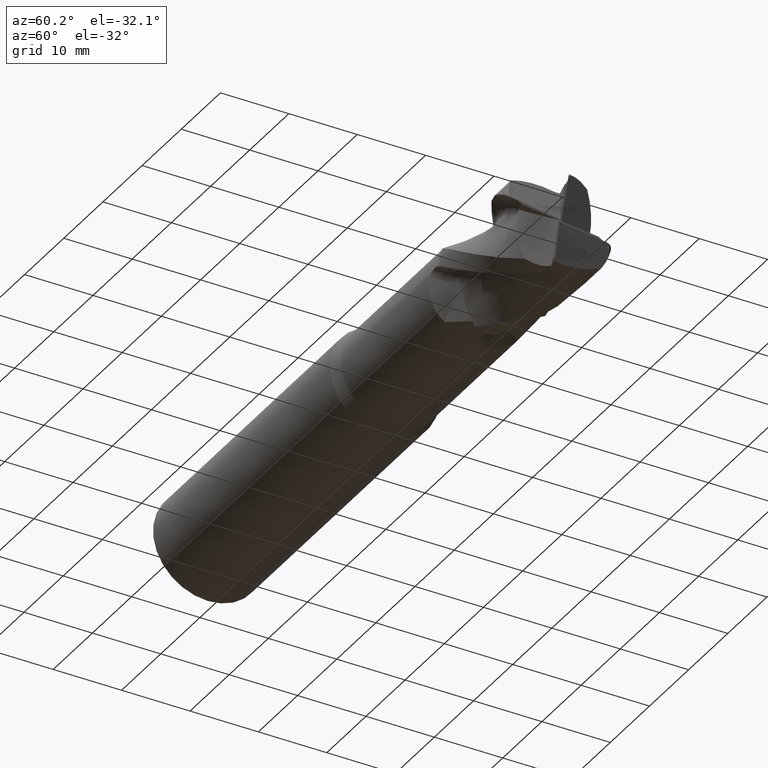
[diagram: clean part render]
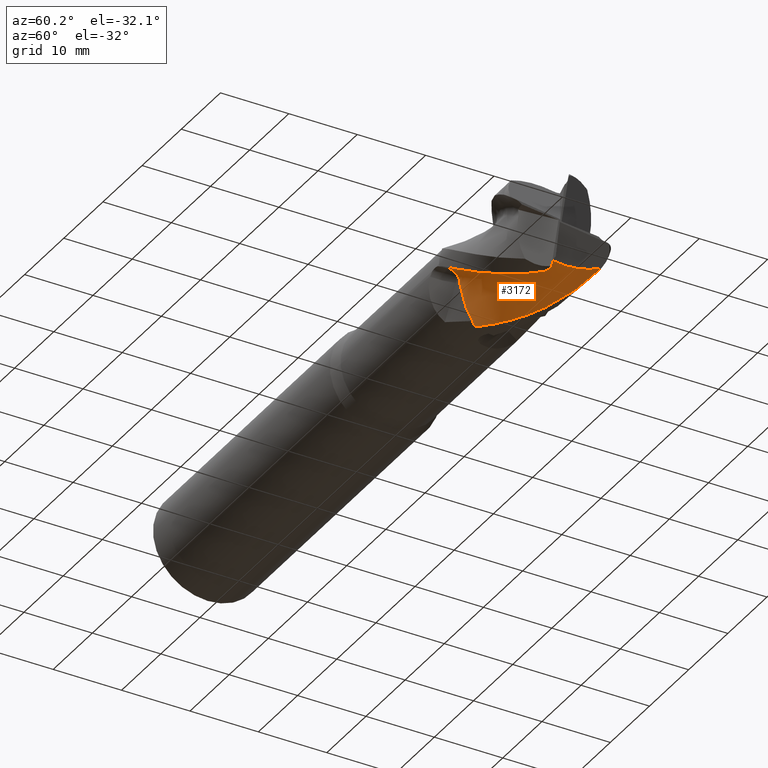
[diagram: same view with one face highlighted and labeled with its STEP entity id]
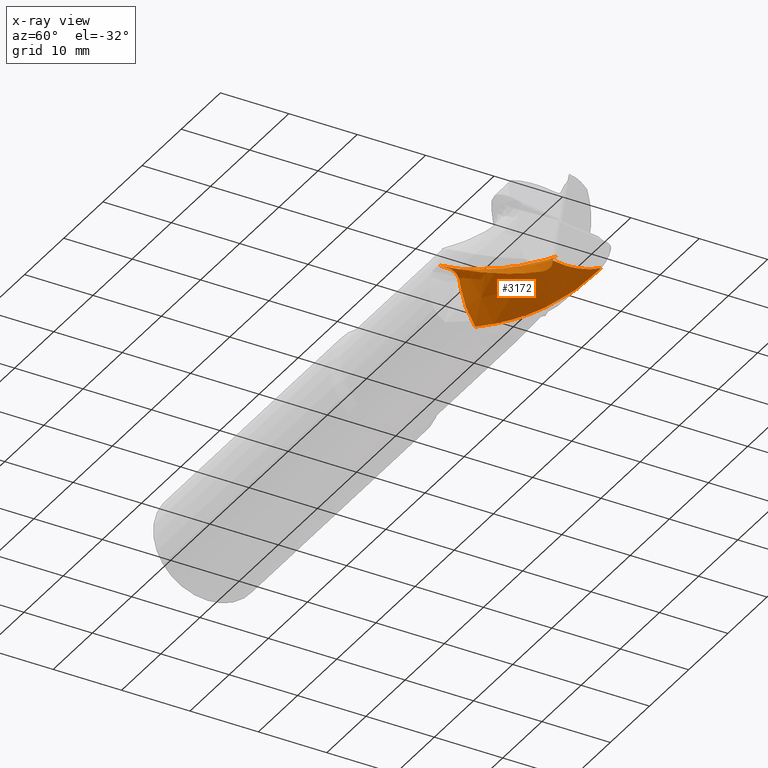
[diagram: x-ray of the same camera — body ghosted, the highlighted face saturated]
A machine part, auxiliary view. The second image highlights one B-rep face of the part: STEP entity #3172.
The next image is the same camera in x-ray: the body ghosted, the highlighted face saturated — about 0% of this face is hidden behind the body in this view.
In plain terms, the highlighted face is a freeform B-spline surface patch.
Its self-contained STEP definition (entity closure, byte-faithful):
#17 = B_SPLINE_CURVE_WITH_KNOTS ( 'NONE', 3,
 ( #210, #206, #205, #204, #203, #202, #201, #200, #199, #198, #197, #196, #195, #194, #193, #192, #191, #190, #189, #187, #185, #184, #183, #182, #181, #180 ),
 .UNSPECIFIED., .F., .F.,
 ( 4, 2, 2, 2, 2, 2, 2, 2, 2, 2, 2, 2, 4 ),
 ( 5.357508020654277700E-005, 0.001243000614496340100, 0.002432426148786137600, 0.004811277217365733100, 0.006000702751655531300, 0.007190128285945329500, 0.009568979354524926800, 0.01194783042310452000, 0.01313725595739431400, 0.01432668149168410600, 0.01670553256026369500, 0.01789495809455348600, 0.01908438362884327900 ),
 .UNSPECIFIED. ) ;
#43 = B_SPLINE_CURVE_WITH_KNOTS ( 'NONE', 3,
 ( #446, #463, #456, #455, #458, #457, #460, #459, #461, #462 ),
 .UNSPECIFIED., .F., .F.,
 ( 4, 2, 2, 2, 4 ),
 ( 0.0000000000000000000, 0.0004267208506475113700, 0.0008534417012950227400, 0.001280162551942534000, 0.001706883402590045500 ),
 .UNSPECIFIED. ) ;
#49 = B_SPLINE_CURVE_WITH_KNOTS ( 'NONE', 3,
 ( #525, #2167, #2168, #2169, #2166, #2266, #662, #670, #579, #578, #996, #1004, #1003, #997 ),
 .UNSPECIFIED., .F., .F.,
 ( 4, 2, 2, 2, 2, 2, 4 ),
 ( 0.0000000000000000000, 0.004771799707058960200, 0.007157699560588444600, 0.009543599414117920300, 0.01431539912117688700, 0.01670129897470637100, 0.01908719882823585500 ),
 .UNSPECIFIED. ) ;
#53 = B_SPLINE_CURVE_WITH_KNOTS ( 'NONE', 3,
 ( #2313, #2273, #2272, #2270, #2269, #2268 ),
 .UNSPECIFIED., .F., .F.,
 ( 4, 2, 4 ),
 ( 0.002925791194177641000, 0.003807155817148820400, 0.004688520440119999300 ),
 .UNSPECIFIED. ) ;
#60 = B_SPLINE_CURVE_WITH_KNOTS ( 'NONE', 3,
 ( #430, #324, #325, #332, #333, #329, #330, #331, #328, #326, #327, #453, #454, #452 ),
 .UNSPECIFIED., .F., .F.,
 ( 4, 2, 2, 2, 2, 2, 4 ),
 ( 0.003240335425444872500, 0.003710400609906080500, 0.004180465794367289400, 0.005120596163289706200, 0.007000856901134538300, 0.008881117638979370300, 0.01076137837682420200 ),
 .UNSPECIFIED. ) ;
#154 = FACE_OUTER_BOUND ( 'NONE', #1989, .T. ) ;
#180 = CARTESIAN_POINT ( 'NONE',  ( 24.99999999999998900, -2.707067271003771800, -7.528066603734353100 ) ) ;
#181 = CARTESIAN_POINT ( 'NONE',  ( 25.33639450635487500, -2.501514964047163700, -7.601982517598019100 ) ) ;
#182 = CARTESIAN_POINT ( 'NONE',  ( 25.67506491012196800, -2.296885944676800400, -7.666234315150453500 ) ) ;
#183 = CARTESIAN_POINT ( 'NONE',  ( 26.34983989586399700, -1.879066184878860600, -7.779199437634252600 ) ) ;
#184 = CARTESIAN_POINT ( 'NONE',  ( 26.68559653089028300, -1.664183001736114800, -7.828121930101498400 ) ) ;
#185 = CARTESIAN_POINT ( 'NONE',  ( 27.68573733589415300, -1.011063171209364300, -7.948191198444885900 ) ) ;
#187 = CARTESIAN_POINT ( 'NONE',  ( 28.34295415546614200, -0.5646330718656978900, -7.992241120303091000 ) ) ;
#189 = CARTESIAN_POINT ( 'NONE',  ( 29.33011876363249800, 0.09720917857566596700, -8.002451657668912000 ) ) ;
#190 = CARTESIAN_POINT ( 'NONE',  ( 29.65939457550393500, 0.3165395394811110200, -7.996673292725657400 ) ) ;
#191 = CARTESIAN_POINT ( 'NONE',  ( 30.32076287222508900, 0.7490791845668362000, -7.967801541573140700 ) ) ;
#192 = CARTESIAN_POINT ( 'NONE',  ( 30.65407510669100700, 0.9604428447403063900, -7.945048280509833900 ) ) ;
#193 = CARTESIAN_POINT ( 'NONE',  ( 31.64962486026150000, 1.598591591403928400, -7.850444285164525300 ) ) ;
#194 = CARTESIAN_POINT ( 'NONE',  ( 32.30827213094310900, 2.028102600723675800, -7.751241440436238000 ) ) ;
#195 = CARTESIAN_POINT ( 'NONE',  ( 33.63267961145157200, 2.868777764984548700, -7.480979759505331100 ) ) ;
#196 = CARTESIAN_POINT ( 'NONE',  ( 34.30174501487060500, 3.281438009620042200, -7.308937799132398700 ) ) ;
#197 = CARTESIAN_POINT ( 'NONE',  ( 35.30700307745792100, 3.860089972561567200, -7.010478385557771500 ) ) ;
#198 = CARTESIAN_POINT ( 'NONE',  ( 35.64348294907230800, 4.045379322804227400, -6.905206145999764900 ) ) ;
#199 = CARTESIAN_POINT ( 'NONE',  ( 36.31007556969581200, 4.413289012797315000, -6.676065148996632300 ) ) ;
#200 = CARTESIAN_POINT ( 'NONE',  ( 36.64111705442428500, 4.594524380359179500, -6.552770684226494800 ) ) ;
#201 = CARTESIAN_POINT ( 'NONE',  ( 37.63110863891640900, 5.124613682093255700, -6.158909505455830500 ) ) ;
#202 = CARTESIAN_POINT ( 'NONE',  ( 38.28698816085142200, 5.459493390990113300, -5.864084725912507100 ) ) ;
#203 = CARTESIAN_POINT ( 'NONE',  ( 39.27934701316953400, 5.917076666294310200, -5.388561326080637300 ) ) ;
#204 = CARTESIAN_POINT ( 'NONE',  ( 39.61154810166404200, 6.062230754448275000, -5.224584669761511300 ) ) ;
#205 = CARTESIAN_POINT ( 'NONE',  ( 40.28094247290337600, 6.336084764191433300, -4.888860455429943700 ) ) ;
#206 = CARTESIAN_POINT ( 'NONE',  ( 40.61848861709414400, 6.464585507317065300, -4.717725205046931200 ) ) ;
#210 = CARTESIAN_POINT ( 'NONE',  ( 40.95458504110494100, 6.588591558615744000, -4.537671349242727600 ) ) ;
#324 = CARTESIAN_POINT ( 'NONE',  ( 40.35894581821276700, -0.7476687134579049800, -5.196836640887537100 ) ) ;
#325 = CARTESIAN_POINT ( 'NONE',  ( 40.37495507815604900, -0.5912605937238795100, -5.172105954347266300 ) ) ;
#326 = CARTESIAN_POINT ( 'NONE',  ( 40.54208569225797000, 3.539756952357235000, -5.343690272399898700 ) ) ;
#327 = CARTESIAN_POINT ( 'NONE',  ( 40.60310010451259200, 4.167535932430355100, -5.254886245420407500 ) ) ;
#328 = CARTESIAN_POINT ( 'NONE',  ( 40.45199421038889700, 2.274934778652232500, -5.416691017165958600 ) ) ;
#329 = CARTESIAN_POINT ( 'NONE',  ( 40.40044421340199700, 0.3624285527808008800, -5.253954953772879600 ) ) ;
#330 = CARTESIAN_POINT ( 'NONE',  ( 40.40305150496126900, 0.6790593170338667900, -5.300015418913524500 ) ) ;
#331 = CARTESIAN_POINT ( 'NONE',  ( 40.42278150962500400, 1.633582339184567600, -5.400583888663565100 ) ) ;
#332 = CARTESIAN_POINT ( 'NONE',  ( 40.39693739316281600, -0.2717654314411579500, -5.156165240289538200 ) ) ;
#333 = CARTESIAN_POINT ( 'NONE',  ( 40.40225275938881600, -0.1102934509691860100, -5.166798741034228600 ) ) ;
#421 = CARTESIAN_POINT ( 'NONE',  ( 41.99999999999999300, -1.185602332051823900, -6.898865639381120300 ) ) ;
#430 = CARTESIAN_POINT ( 'NONE',  ( 40.33825437603732000, -0.9009609209414395400, -5.237205692324732100 ) ) ;
#446 = CARTESIAN_POINT ( 'NONE',  ( 41.00000000000000000, -2.000542796254437300, -7.745826522738214600 ) ) ;
#452 = CARTESIAN_POINT ( 'NONE',  ( 40.95458504110494100, 6.588591558615744000, -4.537671349242727600 ) ) ;
#453 = CARTESIAN_POINT ( 'NONE',  ( 40.75667423696089000, 5.405790857320592800, -4.972552460978059600 ) ) ;
#454 = CARTESIAN_POINT ( 'NONE',  ( 40.84738126116343400, 6.007507891047414000, -4.783491752996455100 ) ) ;
#455 = CARTESIAN_POINT ( 'NONE',  ( 41.46726118704494700, -1.677583553628656700, -7.712559565639463900 ) ) ;
#456 = CARTESIAN_POINT ( 'NONE',  ( 41.23830987178391900, -1.842845729742141900, -7.763492351769324200 ) ) ;
#457 = CARTESIAN_POINT ( 'NONE',  ( 41.76803947306793000, -1.440296374233970700, -7.516861439337446900 ) ) ;
#458 = CARTESIAN_POINT ( 'NONE',  ( 41.57632062606871400, -1.594537028017772900, -7.663527048934818200 ) ) ;
#459 = CARTESIAN_POINT ( 'NONE',  ( 41.96815457701081400, -1.252842361719118400, -7.178849728795053200 ) ) ;
#460 = CARTESIAN_POINT ( 'NONE',  ( 41.85112147092002700, -1.368788798780304500, -7.418402964363100900 ) ) ;
#461 = CARTESIAN_POINT ( 'NONE',  ( 42.00000000000093100, -1.210463024485221500, -7.042390158141287800 ) ) ;
#462 = CARTESIAN_POINT ( 'NONE',  ( 41.99999999999999300, -1.185602332051823900, -6.898865639381120300 ) ) ;
#463 = CARTESIAN_POINT ( 'NONE',  ( 41.12096760625793500, -1.923351206700340700, -7.765763075404421100 ) ) ;
#500 = B_SPLINE_CURVE_WITH_KNOTS ( 'NONE', 3,
 ( #1319, #1326, #1327, #1328, #1329, #1330, #1331, #1332, #1333, #1334, #1335, #1336 ),
 .UNSPECIFIED., .F., .F.,
 ( 4, 2, 2, 2, 2, 4 ),
 ( 0.0000000000000000000, 0.0003511358010097651700, 0.0005267037015146477000, 0.0007022716020195303400, 0.001053407403029295400, 0.001404543204039060700 ),
 .UNSPECIFIED. ) ;
#508 = B_SPLINE_CURVE_WITH_KNOTS ( 'NONE', 3,
 ( #1085, #1108, #1109, #1110 ),
 .UNSPECIFIED., .F., .F.,
 ( 4, 4 ),
 ( 0.0000000000000000000, 1.000000000000000000 ),
 .UNSPECIFIED. ) ;
#516 = B_SPLINE_CURVE_WITH_KNOTS ( 'NONE', 3,
 ( #1081, #1086, #1087, #1088, #1089, #1090, #1091, #1092, #1093, #1094, #1095, #1096, #1097, #1098, #1099, #1100, #1101, #1102, #1103, #1104, #1105, #1106 ),
 .UNSPECIFIED., .F., .F.,
 ( 4, 2, 2, 2, 2, 2, 2, 2, 2, 2, 4 ),
 ( 0.0006889557811843208900, 0.002875303047863141900, 0.003968476681202553000, 0.005061650314541964500, 0.006154823947881376100, 0.006701410764551081800, 0.006974704172885933800, 0.007247997581220785900, 0.008341171214560195700, 0.008887758031229899700, 0.009434344847899605500 ),
 .UNSPECIFIED. ) ;
#525 = CARTESIAN_POINT ( 'NONE',  ( 24.99999999999999600, -8.000000000000016000, -8.177756062443091800E-014 ) ) ;
#578 = CARTESIAN_POINT ( 'NONE',  ( 37.64917986814123900, -4.042167640110274200, -6.917536023775444900 ) ) ;
#579 = CARTESIAN_POINT ( 'NONE',  ( 35.65775827175626500, -5.137581406851767300, -6.194429172402655200 ) ) ;
#662 = CARTESIAN_POINT ( 'NONE',  ( 32.33780543952782700, -6.592095557605363300, -4.553828963208332900 ) ) ;
#670 = CARTESIAN_POINT ( 'NONE',  ( 34.33784855928696100, -5.784492767498900200, -5.595710114880337600 ) ) ;
#748 = VECTOR ( 'NONE', #1112, 1000.000000000000000 ) ;
#757 = LINE ( 'NONE', #1111, #748 ) ;
#787 = VERTEX_POINT ( 'NONE', #898 ) ;
#790 = VERTEX_POINT ( 'NONE', #881 ) ;
#792 = VERTEX_POINT ( 'NONE', #879 ) ;
#809 = CARTESIAN_POINT ( 'NONE',  ( 24.99999999999999600, -6.520000000000009300, -6.561739928471614200E-014 ) ) ;
#849 = CARTESIAN_POINT ( 'NONE',  ( 41.98837996745696400, -0.6681168625492267500, -5.628964541514208400 ) ) ;
#852 = CARTESIAN_POINT ( 'NONE',  ( 41.00000000000000000, -2.000542796254437300, -7.745826522738214600 ) ) ;
#853 = CARTESIAN_POINT ( 'NONE',  ( 24.99999999999999600, -8.000000000000016000, -8.177756062443091800E-014 ) ) ;
#856 = CARTESIAN_POINT ( 'NONE',  ( 40.95458504110494100, 6.588591558615744000, -4.537671349242727600 ) ) ;
#879 = CARTESIAN_POINT ( 'NONE',  ( 40.33825437603732000, -0.9009609209414395400, -5.237205692324732100 ) ) ;
#881 = CARTESIAN_POINT ( 'NONE',  ( 24.99999999999998900, -2.707067271003771800, -7.528066603734353100 ) ) ;
#882 = VERTEX_POINT ( 'NONE', #856 ) ;
#898 = CARTESIAN_POINT ( 'NONE',  ( 25.00000000000000000, -7.506457499987581300, -7.568548554874214900E-014 ) ) ;
#904 = VERTEX_POINT ( 'NONE', #853 ) ;
#906 = VERTEX_POINT ( 'NONE', #852 ) ;
#909 = VERTEX_POINT ( 'NONE', #849 ) ;
#940 = VERTEX_POINT ( 'NONE', #809 ) ;
#970 = VERTEX_POINT ( 'NONE', #421 ) ;
#996 = CARTESIAN_POINT ( 'NONE',  ( 38.31493670163931100, -3.656180945675958400, -7.129344742717134600 ) ) ;
#997 = CARTESIAN_POINT ( 'NONE',  ( 41.00000000000000000, -2.000542796254437300, -7.745826522738214600 ) ) ;
#1003 = CARTESIAN_POINT ( 'NONE',  ( 40.32811515339462000, -2.429284514067691500, -7.635093839465843900 ) ) ;
#1004 = CARTESIAN_POINT ( 'NONE',  ( 39.65595818607005200, -2.848845765767835200, -7.488610910636167800 ) ) ;
#1081 = CARTESIAN_POINT ( 'NONE',  ( 24.99999999999998900, -2.707067271003771800, -7.528066603734353100 ) ) ;
#1085 = CARTESIAN_POINT ( 'NONE',  ( 24.99999999999999600, -6.520000000000009300, -6.561739928471614200E-014 ) ) ;
#1086 = CARTESIAN_POINT ( 'NONE',  ( 25.00000000000000000, -3.116744820006482900, -6.919312838221173000 ) ) ;
#1087 = CARTESIAN_POINT ( 'NONE',  ( 24.99999999999998600, -3.477303475442347300, -6.285254468470347100 ) ) ;
#1088 = CARTESIAN_POINT ( 'NONE',  ( 24.99999999999998600, -3.940723967670151800, -5.294283707470572900 ) ) ;
#1089 = CARTESIAN_POINT ( 'NONE',  ( 24.99999999999998600, -4.082256499829820300, -4.957293317122313200 ) ) ;
#1090 = CARTESIAN_POINT ( 'NONE',  ( 24.99999999999998600, -4.338311078410094400, -4.269397531378698900 ) ) ;
#1091 = CARTESIAN_POINT ( 'NONE',  ( 24.99999999999998600, -4.453082337091902200, -3.917472363214875600 ) ) ;
#1092 = CARTESIAN_POINT ( 'NONE',  ( 24.99999999999999300, -4.652341353751850800, -3.205687404642113800 ) ) ;
#1093 = CARTESIAN_POINT ( 'NONE',  ( 25.00000000000000000, -4.736999099855669500, -2.845485477025390800 ) ) ;
#1094 = CARTESIAN_POINT ( 'NONE',  ( 25.00000000000000400, -4.840859812708182600, -2.301301704143486200 ) ) ;
#1095 = CARTESIAN_POINT ( 'NONE',  ( 24.99999999999998600, -4.871654531451984100, -2.119162010301131700 ) ) ;
#1096 = CARTESIAN_POINT ( 'NONE',  ( 24.99999999999999600, -4.912099692412971000, -1.844833132612512200 ) ) ;
#1097 = CARTESIAN_POINT ( 'NONE',  ( 24.99999999999999600, -4.924626109544375300, -1.753186234990334700 ) ) ;
#1098 = CARTESIAN_POINT ( 'NONE',  ( 25.00000000000000000, -4.947766321651890600, -1.569448555836005600 ) ) ;
#1099 = CARTESIAN_POINT ( 'NONE',  ( 24.99999999999997200, -4.958724675852145900, -1.477441295335687700 ) ) ;
#1100 = CARTESIAN_POINT ( 'NONE',  ( 24.99999999999996400, -5.058867622108317100, -1.027666590746653300 ) ) ;
#1101 = CARTESIAN_POINT ( 'NONE',  ( 25.00000000000000400, -5.242255945634328300, -0.6800678077114085100 ) ) ;
#1102 = CARTESIAN_POINT ( 'NONE',  ( 25.00000000000000000, -5.648432458261455100, -0.2952373027313381400 ) ) ;
#1103 = CARTESIAN_POINT ( 'NONE',  ( 24.99999999999998600, -5.804514968501376200, -0.1904006683925212900 ) ) ;
#1104 = CARTESIAN_POINT ( 'NONE',  ( 24.99999999999998600, -6.148214747242179500, -0.04192257787149077100 ) ) ;
#1105 = CARTESIAN_POINT ( 'NONE',  ( 25.00000000000001800, -6.331293885177695200, -6.333604159799306600E-014 ) ) ;
#1106 = CARTESIAN_POINT ( 'NONE',  ( 24.99999999999999600, -6.520000000000009300, -6.561739928471614200E-014 ) ) ;
#1108 = CARTESIAN_POINT ( 'NONE',  ( 24.99999999999999300, -6.846666666666678200, -6.544689454890525100E-014 ) ) ;
#1109 = CARTESIAN_POINT ( 'NONE',  ( 24.99999999999999300, -7.173333333333346200, -6.544689454890525100E-014 ) ) ;
#1110 = CARTESIAN_POINT ( 'NONE',  ( 25.00000000000000000, -7.506457499987581300, -7.568548554874214900E-014 ) ) ;
#1111 = CARTESIAN_POINT ( 'NONE',  ( 24.99999999999999600, -8.000000000000016000, -8.340733361193967700E-014 ) ) ;
#1112 = DIRECTION ( 'NONE',  ( -2.344220913482160100E-015, -1.000000000000000000, -1.213543179934752800E-014 ) ) ;
#1319 = CARTESIAN_POINT ( 'NONE',  ( 41.99999999999999300, -1.185602332051823900, -6.898865639381120300 ) ) ;
#1326 = CARTESIAN_POINT ( 'NONE',  ( 41.99897828195931700, -1.166199728602023600, -6.783406474440973000 ) ) ;
#1327 = CARTESIAN_POINT ( 'NONE',  ( 41.99795656953735100, -1.146769607537848000, -6.667952651011920500 ) ) ;
#1328 = CARTESIAN_POINT ( 'NONE',  ( 41.99642400920095000, -1.117583187884227700, -6.494779920689127000 ) ) ;
#1329 = CARTESIAN_POINT ( 'NONE',  ( 41.99591291330490600, -1.109127797065981200, -6.436808491264937300 ) ) ;
#1330 = CARTESIAN_POINT ( 'NONE',  ( 41.99489202562981700, -1.085362674358582000, -6.322196146092124100 ) ) ;
#1331 = CARTESIAN_POINT ( 'NONE',  ( 41.99438082221659100, -1.069456292977574600, -6.265496671537281500 ) ) ;
#1332 = CARTESIAN_POINT ( 'NONE',  ( 41.99285977172617400, -1.010560004084114900, -6.098685216601978700 ) ) ;
#1333 = CARTESIAN_POINT ( 'NONE',  ( 41.99189083585183400, -0.9578320805378166500, -5.994944282700656000 ) ) ;
#1334 = CARTESIAN_POINT ( 'NONE',  ( 41.99004367626385200, -0.8291070675620014800, -5.800366886518427000 ) ) ;
#1335 = CARTESIAN_POINT ( 'NONE',  ( 41.98916401592800400, -0.7524430516151324700, -5.709429334032791700 ) ) ;
#1336 = CARTESIAN_POINT ( 'NONE',  ( 41.98837996745696400, -0.6681168625492267500, -5.628964541514208400 ) ) ;
#1738 = EDGE_CURVE ( 'NONE', #792, #882, #60, .T. ) ;
#1740 = EDGE_CURVE ( 'NONE', #906, #970, #43, .T. ) ;
#1829 = EDGE_CURVE ( 'NONE', #909, #792, #53, .T. ) ;
#1835 = EDGE_CURVE ( 'NONE', #904, #906, #49, .T. ) ;
#1868 = EDGE_CURVE ( 'NONE', #882, #790, #17, .T. ) ;
#1881 = EDGE_CURVE ( 'NONE', #790, #940, #516, .T. ) ;
#1882 = EDGE_CURVE ( 'NONE', #940, #787, #508, .T. ) ;
#1883 = EDGE_CURVE ( 'NONE', #787, #904, #757, .T. ) ;
#1938 = EDGE_CURVE ( 'NONE', #970, #909, #500, .T. ) ;
#1977 = ORIENTED_EDGE ( 'NONE', *, *, #1882, .F. ) ;
#1989 = EDGE_LOOP ( 'NONE', ( #1977, #2019, #2034, #2040, #2081, #2015, #2056, #2134, #2018 ) ) ;
#2015 = ORIENTED_EDGE ( 'NONE', *, *, #1938, .F. ) ;
#2018 = ORIENTED_EDGE ( 'NONE', *, *, #1883, .F. ) ;
#2019 = ORIENTED_EDGE ( 'NONE', *, *, #1881, .F. ) ;
#2034 = ORIENTED_EDGE ( 'NONE', *, *, #1868, .F. ) ;
#2040 = ORIENTED_EDGE ( 'NONE', *, *, #1738, .F. ) ;
#2056 = ORIENTED_EDGE ( 'NONE', *, *, #1740, .F. ) ;
#2081 = ORIENTED_EDGE ( 'NONE', *, *, #1829, .F. ) ;
#2134 = ORIENTED_EDGE ( 'NONE', *, *, #1835, .F. ) ;
#2152 = B_SPLINE_SURFACE_WITH_KNOTS ( 'NONE', 3, 3, ( 
 ( #2613, #2614, #2615, #2616, #2617, #2618, #2619, #2620, #2621, #2622, #2623, #2624, #2625, #2626, #2627, #2628 ),
 ( #2629, #2630, #2631, #2632, #2633, #2634, #2635, #2636, #2637, #2638, #2639, #2640, #2641, #2642, #2643, #2644 ),
 ( #2645, #2646, #2647, #2648, #2649, #2650, #2651, #2652, #2653, #2654, #2655, #2656, #2657, #2658, #2659, #2660 ),
 ( #2661, #2662, #2663, #2664, #2665, #2666, #2667, #2668, #2669, #2670, #2671, #2672, #2673, #2674, #2675, #2676 ),
 ( #2677, #2678, #2679, #2680, #2681, #2682, #2683, #2684, #2685, #2686, #2687, #2688, #2689, #2690, #2691, #2692 ),
 ( #2693, #2694, #2695, #2696, #2697, #2698, #2699, #2700, #2701, #2702, #2703, #2704, #2705, #2706, #2707, #2708 ),
 ( #2709, #2710, #2711, #2712, #2713, #2714, #2715, #2716, #2717, #2718, #2719, #2720, #2721, #2722, #2723, #2724 ),
 ( #2725, #2726, #2727, #2728, #2729, #2730, #2731, #2732, #2733, #2734, #2735, #2736, #2737, #2738, #2739, #2740 ),
 ( #2741, #2742, #2743, #2744, #2745, #2746, #2747, #2748, #2749, #2750, #2751, #2752, #2753, #2754, #2755, #2756 ),
 ( #2757, #2758, #2759, #2760, #2761, #2762, #2763, #2764, #2765, #2766, #2767, #2768, #2769, #2770, #2771, #2772 ),
 ( #2773, #2774, #2775, #2776, #2777, #2778, #2779, #2780, #2781, #2782, #2783, #2784, #2785, #2786, #2787, #2788 ),
 ( #2789, #2790, #2791, #2792, #2793, #2794, #2795, #2796, #2797, #2798, #2799, #2800, #2801, #2802, #2803, #2804 ),
 ( #2805, #2806, #2807, #2808, #2809, #2810, #2811, #2812, #2813, #2814, #2815, #2816, #2817, #2818, #2819, #2820 ),
 ( #2821, #2822, #2823, #2824, #2825, #2826, #2827, #2828, #2829, #2830, #2831, #2832, #2833, #2834, #2835, #2836 ) ),
 .UNSPECIFIED., .F., .F., .F.,
 ( 4, 2, 2, 2, 2, 2, 4 ),
 ( 4, 2, 2, 2, 2, 2, 2, 4 ),
 ( 0.0000000000000000000, 0.5000000000000003300, 0.6259407578674413000, 0.6902152126381615500, 0.7544896674088817900, 0.8363264449392544500, 1.000000000000000000 ),
 ( 0.0000000000000000000, 0.1428570737831660900, 0.2857161845894564100, 0.4285694415899814500, 0.5714305584100183300, 0.7142838154105434200, 0.8571429262168335200, 1.000000000000000000 ),
 .UNSPECIFIED. ) ;
#2166 = CARTESIAN_POINT ( 'NONE',  ( 30.32720734910232400, -7.252765827094753700, -3.404638826594765400 ) ) ;
#2167 = CARTESIAN_POINT ( 'NONE',  ( 26.34379014981697500, -8.000000000000012400, -0.8855962627934778100 ) ) ;
#2168 = CARTESIAN_POINT ( 'NONE',  ( 27.66898196080355300, -7.853224666013660200, -1.758816956992369700 ) ) ;
#2169 = CARTESIAN_POINT ( 'NONE',  ( 29.66201325733073100, -7.428481587251409800, -3.001550431633509800 ) ) ;
#2266 = CARTESIAN_POINT ( 'NONE',  ( 31.66456511648872800, -6.834954708149093800, -4.180618592957335600 ) ) ;
#2268 = CARTESIAN_POINT ( 'NONE',  ( 40.33825437603732000, -0.9009609209414395400, -5.237205692324732100 ) ) ;
#2269 = CARTESIAN_POINT ( 'NONE',  ( 40.61703040171945400, -0.8589215799163726400, -5.280499297355632400 ) ) ;
#2270 = CARTESIAN_POINT ( 'NONE',  ( 40.89464008021703000, -0.8178867774559831500, -5.330631697446119900 ) ) ;
#2272 = CARTESIAN_POINT ( 'NONE',  ( 41.44573643300013500, -0.7393681878659639200, -5.455071444169165700 ) ) ;
#2273 = CARTESIAN_POINT ( 'NONE',  ( 41.71978812321206900, -0.7017007250634228500, -5.528632337859817400 ) ) ;
#2313 = CARTESIAN_POINT ( 'NONE',  ( 41.98837996745696400, -0.6681168625492267500, -5.628964541514208400 ) ) ;
#2613 = CARTESIAN_POINT ( 'NONE',  ( 17.95646285666224900, -5.039999999999857900, -10.68777734191830800 ) ) ;
#2614 = CARTESIAN_POINT ( 'NONE',  ( 19.57215307841078900, -3.651257182109040900, -11.36794639507226100 ) ) ;
#2615 = CARTESIAN_POINT ( 'NONE',  ( 21.20118534387726300, -2.033816695161795100, -11.72967779491088800 ) ) ;
#2616 = CARTESIAN_POINT ( 'NONE',  ( 24.42354108332302700, 1.042367961987125600, -11.90894122982334300 ) ) ;
#2617 = CARTESIAN_POINT ( 'NONE',  ( 26.05771879731169000, 2.697850436688279200, -11.59406165774504800 ) ) ;
#2618 = CARTESIAN_POINT ( 'NONE',  ( 29.28229749857881700, 5.609706653628252900, -10.54180452474903800 ) ) ;
#2619 = CARTESIAN_POINT ( 'NONE',  ( 30.91501561199197900, 6.999725869600797300, -9.631080923323859000 ) ) ;
#2620 = CARTESIAN_POINT ( 'NONE',  ( 34.13832365002767200, 9.271946616366104600, -7.537119917730396200 ) ) ;
#2621 = CARTESIAN_POINT ( 'NONE',  ( 35.77245297799353100, 10.19750283528681800, -6.137109269888669300 ) ) ;
#2622 = CARTESIAN_POINT ( 'NONE',  ( 38.99644244330217200, 11.47331635805917700, -3.323647341958997400 ) ) ;
#2623 = CARTESIAN_POINT ( 'NONE',  ( 40.62868284885474400, 11.78955530514517700, -1.690983632304270400 ) ) ;
#2624 = CARTESIAN_POINT ( 'NONE',  ( 43.85231243068997000, 11.86454782108016900, 1.405247200229898800 ) ) ;
#2625 = CARTESIAN_POINT ( 'NONE',  ( 45.48757259105996600, 11.49843059394083500, 3.047586156122875400 ) ) ;
#2626 = CARTESIAN_POINT ( 'NONE',  ( 48.71115644824320900, 10.37751587151827500, 5.916503193962965300 ) ) ;
#2627 = CARTESIAN_POINT ( 'NONE',  ( 50.34246258558537300, 9.427749478702665400, 7.279794306619195700 ) ) ;
#2628 = CARTESIAN_POINT ( 'NONE',  ( 51.95308810071645700, 8.348642999610834900, 8.385054535906268900 ) ) ;
#2629 = CARTESIAN_POINT ( 'NONE',  ( 19.61506714757569700, -5.039999999999891700, -8.171031423086837700 ) ) ;
#2630 = CARTESIAN_POINT ( 'NONE',  ( 21.22941030924771200, -3.979033234408773500, -8.850586750229069800 ) ) ;
#2631 = CARTESIAN_POINT ( 'NONE',  ( 22.85946740496555300, -2.709958957678717500, -9.283513903314036100 ) ) ;
#2632 = CARTESIAN_POINT ( 'NONE',  ( 26.08195015577898000, -0.2334053113514638300, -9.715116056700381400 ) ) ;
#2633 = CARTESIAN_POINT ( 'NONE',  ( 27.71627235867493200, 1.121738060419385600, -9.604742902947837300 ) ) ;
#2634 = CARTESIAN_POINT ( 'NONE',  ( 30.94072520868310100, 3.576770996501570800, -9.022231660718722100 ) ) ;
#2635 = CARTESIAN_POINT ( 'NONE',  ( 32.57340110523280400, 4.773665104350516900, -8.412048951402152100 ) ) ;
#2636 = CARTESIAN_POINT ( 'NONE',  ( 35.79677361364922900, 6.808526215294563100, -6.926594074709051100 ) ) ;
#2637 = CARTESIAN_POINT ( 'NONE',  ( 37.43091945376612300, 7.672314938122017500, -5.883036067636675500 ) ) ;
#2638 = CARTESIAN_POINT ( 'NONE',  ( 40.65481296638498800, 8.966849090475673000, -3.722466810108694200 ) ) ;
#2639 = CARTESIAN_POINT ( 'NONE',  ( 42.28712361807942700, 9.363828956647671100, -2.437801844438907600 ) ) ;
#2640 = CARTESIAN_POINT ( 'NONE',  ( 45.51085079250501100, 9.710905193565521300, 0.06234244481949976400 ) ) ;
#2641 = CARTESIAN_POINT ( 'NONE',  ( 47.14600060979636000, 9.558807327323430400, 1.411045573932922600 ) ) ;
#2642 = CARTESIAN_POINT ( 'NONE',  ( 50.36942235217519900, 8.917618227764220900, 3.840536286807428600 ) ) ;
#2643 = CARTESIAN_POINT ( 'NONE',  ( 52.00172395734077900, 8.273087492616657100, 5.020052037952259700 ) ) ;
#2644 = CARTESIAN_POINT ( 'NONE',  ( 53.61168879934796600, 7.501706219226034200, 6.015092505340828000 ) ) ;
#2645 = CARTESIAN_POINT ( 'NONE',  ( 21.27367143848914600, -5.039999999999924500, -5.654285504255370600 ) ) ;
#2646 = CARTESIAN_POINT ( 'NONE',  ( 22.88649923684172900, -4.306419986152851800, -6.333156329783995500 ) ) ;
#2647 = CARTESIAN_POINT ( 'NONE',  ( 24.51774946605047500, -3.386101220194377400, -6.837350011714661100 ) ) ;
#2648 = CARTESIAN_POINT ( 'NONE',  ( 27.74035922823829400, -1.509178584691312600, -7.521290883579944800 ) ) ;
#2649 = CARTESIAN_POINT ( 'NONE',  ( 29.37482592003480200, -0.4543743158469842300, -7.615424148151468000 ) ) ;
#2650 = CARTESIAN_POINT ( 'NONE',  ( 32.59915291879074300, 1.543835339372370100, -7.502658796687563300 ) ) ;
#2651 = CARTESIAN_POINT ( 'NONE',  ( 34.23178659847362600, 2.547604339099398100, -7.193016979477924600 ) ) ;
#2652 = CARTESIAN_POINT ( 'NONE',  ( 37.45522357727078600, 4.345105814223861900, -6.316068231690229200 ) ) ;
#2653 = CARTESIAN_POINT ( 'NONE',  ( 39.08938592953870700, 5.147127040953853900, -5.628962865386363900 ) ) ;
#2654 = CARTESIAN_POINT ( 'NONE',  ( 42.31318348946778900, 6.460381822895533900, -4.121286278256708800 ) ) ;
#2655 = CARTESIAN_POINT ( 'NONE',  ( 43.94556438731082400, 6.938102608146804700, -3.184620056576484600 ) ) ;
#2656 = CARTESIAN_POINT ( 'NONE',  ( 47.16938915431331500, 7.557262566054238700, -1.280562310587956200 ) ) ;
#2657 = CARTESIAN_POINT ( 'NONE',  ( 48.80442862853948300, 7.619184060700138000, -0.2254950082578705600 ) ) ;
#2658 = CARTESIAN_POINT ( 'NONE',  ( 52.02768825610046800, 7.457720584016053400, 1.764569379652735100 ) ) ;
#2659 = CARTESIAN_POINT ( 'NONE',  ( 53.66084737358735200, 7.118785376616171900, 2.760119565701888400 ) ) ;
#2660 = CARTESIAN_POINT ( 'NONE',  ( 55.27028949797946200, 6.654769438841232600, 3.645130474775384800 ) ) ;
#2661 = CARTESIAN_POINT ( 'NONE',  ( 23.35004749220225400, -5.039999999999967200, -2.503617808669052800 ) ) ;
#2662 = CARTESIAN_POINT ( 'NONE',  ( 24.96101173953701400, -4.715509718604528700, -3.181645928207345700 ) ) ;
#2663 = CARTESIAN_POINT ( 'NONE',  ( 26.59372212620117200, -4.232551220645537300, -3.775042651365986000 ) ) ;
#2664 = CARTESIAN_POINT ( 'NONE',  ( 29.81649089157341900, -3.106295563853415800, -4.774881700593899000 ) ) ;
#2665 = CARTESIAN_POINT ( 'NONE',  ( 31.45113846635653900, -2.427480266416246500, -5.125032770114956700 ) ) ;
#2666 = CARTESIAN_POINT ( 'NONE',  ( 34.67530791425799900, -1.001159232465612700, -5.600333616396851800 ) ) ;
#2667 = CARTESIAN_POINT ( 'NONE',  ( 36.30788874341529700, -0.2391599858195044600, -5.666933386739101400 ) ) ;
#2668 = CARTESIAN_POINT ( 'NONE',  ( 39.53140643150919700, 1.261195348637619700, -5.551762213933551000 ) ) ;
#2669 = CARTESIAN_POINT ( 'NONE',  ( 41.16558945502615100, 1.985890988732778900, -5.310893319846363700 ) ) ;
#2670 = CARTESIAN_POINT ( 'NONE',  ( 44.38926689355298500, 3.322581780816250800, -4.620560998545689900 ) ) ;
#2671 = CARTESIAN_POINT ( 'NONE',  ( 46.02173573124432700, 3.901380630231626100, -4.119547971963127600 ) ) ;
#2672 = CARTESIAN_POINT ( 'NONE',  ( 49.24568267260679000, 4.861157169170031300, -2.961719951277590000 ) ) ;
#2673 = CARTESIAN_POINT ( 'NONE',  ( 50.88058401037416400, 5.191005545727235500, -2.274249912853183900 ) ) ;
#2674 = CARTESIAN_POINT ( 'NONE',  ( 54.10364068940456400, 5.630101708940705900, -0.8342952186908837400 ) ) ;
#2675 = CARTESIAN_POINT ( 'NONE',  ( 55.73735056756657300, 5.674138595418223300, -0.06942558764187355100 ) ) ;
#2676 = CARTESIAN_POINT ( 'NONE',  ( 57.34666105458120500, 5.594504938481486000, 0.6782188157169999300 ) ) ;
#2677 = CARTESIAN_POINT ( 'NONE',  ( 23.76781925500191400, -5.039999999999975200, -1.869696031914204000 ) ) ;
#2678 = CARTESIAN_POINT ( 'NONE',  ( 25.37845646904111500, -4.797713187205793000, -2.547574778544229500 ) ) ;
#2679 = CARTESIAN_POINT ( 'NONE',  ( 27.01141272526021100, -4.402858958581036900, -3.158899182614165000 ) ) ;
#2680 = CARTESIAN_POINT ( 'NONE',  ( 30.23421348245594600, -3.427639269675666300, -4.222297690730815800 ) ) ;
#2681 = CARTESIAN_POINT ( 'NONE',  ( 31.86889745133184700, -2.824473840719138100, -4.623960146876493500 ) ) ;
#2682 = CARTESIAN_POINT ( 'NONE',  ( 35.09303519960415200, -1.513218147174391300, -5.217581300135611500 ) ) ;
#2683 = CARTESIAN_POINT ( 'NONE',  ( 36.72560539512287600, -0.7998635454885471000, -5.359881765921140400 ) ) ;
#2684 = CARTESIAN_POINT ( 'NONE',  ( 39.94913932211932900, 0.6407052841233406000, -5.397982039199054500 ) ) ;
#2685 = CARTESIAN_POINT ( 'NONE',  ( 41.58332650474101700, 1.349842833679028200, -5.246896976555834900 ) ) ;
#2686 = CARTESIAN_POINT ( 'NONE',  ( 44.80697977455537300, 2.691249006317951100, -4.721016250687494400 ) ) ;
#2687 = CARTESIAN_POINT ( 'NONE',  ( 46.43946630595316100, 3.290385000813952100, -4.307657675215132500 ) ) ;
#2688 = CARTESIAN_POINT ( 'NONE',  ( 49.66343782908521800, 4.318694399800468100, -3.299972836556823300 ) ) ;
#2689 = CARTESIAN_POINT ( 'NONE',  ( 51.29831137347918700, 4.702450297376784300, -2.686464235257703500 ) ) ;
#2690 = CARTESIAN_POINT ( 'NONE',  ( 54.52132721876992600, 5.262380477614367000, -1.357192909879806100 ) ) ;
#2691 = CARTESIAN_POINT ( 'NONE',  ( 56.15504445069709800, 5.383492851305852900, -0.6387903452699461600 ) ) ;
#2692 = CARTESIAN_POINT ( 'NONE',  ( 57.76443191255144400, 5.381177218506541000, 0.08126918722405779300 ) ) ;
#2693 = CARTESIAN_POINT ( 'NONE',  ( 24.39880279075925200, -5.039999999999988500, -0.9122493117006994500 ) ) ;
#2694 = CARTESIAN_POINT ( 'NONE',  ( 26.00899902081956600, -4.921811981205543400, -1.589924745690453100 ) ) ;
#2695 = CARTESIAN_POINT ( 'NONE',  ( 27.64227367499045600, -4.660084047057685200, -2.228304013038608900 ) ) ;
#2696 = CARTESIAN_POINT ( 'NONE',  ( 30.86512275117014800, -3.912982238607989800, -3.387699847137528600 ) ) ;
#2697 = CARTESIAN_POINT ( 'NONE',  ( 32.49986168801432000, -3.424074942305453700, -3.867162766979313800 ) ) ;
#2698 = CARTESIAN_POINT ( 'NONE',  ( 35.72395155865967100, -2.286608723775429100, -4.639489549233712000 ) ) ;
#2699 = CARTESIAN_POINT ( 'NONE',  ( 37.35650569358754300, -1.646724789103769500, -4.896124914416461100 ) ) ;
#2700 = CARTESIAN_POINT ( 'NONE',  ( 40.58006414708039200, -0.2964547866905527000, -5.165719433097329700 ) ) ;
#2701 = CARTESIAN_POINT ( 'NONE',  ( 42.21425761143368000, 0.3891845280574021700, -5.150239800170602700 ) ) ;
#2702 = CARTESIAN_POINT ( 'NONE',  ( 45.43787437790950900, 1.737712597770575600, -4.872739310565352300 ) ) ;
#2703 = CARTESIAN_POINT ( 'NONE',  ( 47.07038763308938900, 2.367564894451232000, -4.591770045260814100 ) ) ;
#2704 = CARTESIAN_POINT ( 'NONE',  ( 50.29439628340311000, 3.499383219121688700, -3.810854663763997100 ) ) ;
#2705 = CARTESIAN_POINT ( 'NONE',  ( 51.92922784993376000, 3.964558593180482300, -3.309054064922333400 ) ) ;
#2706 = CARTESIAN_POINT ( 'NONE',  ( 55.15218202182747800, 4.706990996142302200, -2.146953883228413400 ) ) ;
#2707 = CARTESIAN_POINT ( 'NONE',  ( 56.78583541317136300, 4.944503501183210600, -1.498762565876483600 ) ) ;
#2708 = CARTESIAN_POINT ( 'NONE',  ( 58.39541408169543500, 5.058976698962591300, -0.8203364759526905500 ) ) ;
#2709 = CARTESIAN_POINT ( 'NONE',  ( 24.61070164128613400, -5.199504182657467100, -0.5907165807230697600 ) ) ;
#2710 = CARTESIAN_POINT ( 'NONE',  ( 26.22119249714257800, -5.122978940736654600, -1.289279721905168400 ) ) ;
#2711 = CARTESIAN_POINT ( 'NONE',  ( 27.85381186303873600, -4.901576100633125300, -1.958447011539498100 ) ) ;
#2712 = CARTESIAN_POINT ( 'NONE',  ( 31.07756972091232600, -4.214846142504525200, -3.188616653758626500 ) ) ;
#2713 = CARTESIAN_POINT ( 'NONE',  ( 32.71145892609053600, -3.751653682485068600, -3.712769656053030800 ) ) ;
#2714 = CARTESIAN_POINT ( 'NONE',  ( 35.93625122179608400, -2.642428628838289700, -4.574379298579813700 ) ) ;
#2715 = CARTESIAN_POINT ( 'NONE',  ( 37.56808728294421200, -2.008556030984673900, -4.881397758109215200 ) ) ;
#2716 = CARTESIAN_POINT ( 'NONE',  ( 40.79245445201123500, -0.6495493862383203700, -5.243951636730193900 ) ) ;
#2717 = CARTESIAN_POINT ( 'NONE',  ( 42.42581034433024500, 0.05025549296299835400, -5.277826107547425300 ) ) ;
#2718 = CARTESIAN_POINT ( 'NONE',  ( 45.65021532232293600, 1.443078459845845000, -5.082519084848491400 ) ) ;
#2719 = CARTESIAN_POINT ( 'NONE',  ( 47.28202487788226400, 2.104849573269250500, -4.840986082700266200 ) ) ;
#2720 = CARTESIAN_POINT ( 'NONE',  ( 50.50676451216421000, 3.309629387048150100, -4.118769706655223600 ) ) ;
#2721 = CARTESIAN_POINT ( 'NONE',  ( 52.14071377634751100, 3.820302247418541500, -3.641248975714126400 ) ) ;
#2722 = CARTESIAN_POINT ( 'NONE',  ( 55.36453977600137900, 4.652255624393355000, -2.504442122663672200 ) ) ;
#2723 = CARTESIAN_POINT ( 'NONE',  ( 56.99740681914323700, 4.940282559481467200, -1.860859111498014900 ) ) ;
#2724 = CARTESIAN_POINT ( 'NONE',  ( 58.60749514928198100, 5.101015988546021300, -1.176679461196470800 ) ) ;
#2725 = CARTESIAN_POINT ( 'NONE',  ( 24.91222862226049600, -5.747459745030338900, -0.1331832179178549200 ) ) ;
#2726 = CARTESIAN_POINT ( 'NONE',  ( 26.52402531289110900, -5.730208408589183100, -0.9036277963449981200 ) ) ;
#2727 = CARTESIAN_POINT ( 'NONE',  ( 28.15418268029649700, -5.557355468729510600, -1.660292310054673100 ) ) ;
#2728 = CARTESIAN_POINT ( 'NONE',  ( 31.38102988329982100, -4.923861207175075800, -3.068720292582277900 ) ) ;
#2729 = CARTESIAN_POINT ( 'NONE',  ( 33.01196279973656500, -4.471792144082127300, -3.693822019189805200 ) ) ;
#2730 = CARTESIAN_POINT ( 'NONE',  ( 36.23920054014613600, -3.342137614881829100, -4.741380497347652300 ) ) ;
#2731 = CARTESIAN_POINT ( 'NONE',  ( 37.86858060745974100, -2.679264126964009800, -5.144215018212258400 ) ) ;
#2732 = CARTESIAN_POINT ( 'NONE',  ( 41.09570943691719700, -1.229219256154266700, -5.669672907122892600 ) ) ;
#2733 = CARTESIAN_POINT ( 'NONE',  ( 42.72618371586671800, -0.4648701618201016600, -5.781453689253869000 ) ) ;
#2734 = CARTESIAN_POINT ( 'NONE',  ( 45.95332115966459700, 1.075309043601130600, -5.700654189591187300 ) ) ;
#2735 = CARTESIAN_POINT ( 'NONE',  ( 47.58269518797419600, 1.825974723937074900, -5.505129545157553000 ) ) ;
#2736 = CARTESIAN_POINT ( 'NONE',  ( 50.80992093031304100, 3.211451970168432100, -4.831313302864854700 ) ) ;
#2737 = CARTESIAN_POINT ( 'NONE',  ( 52.44086753023911000, 3.823401527428564000, -4.361709722084301100 ) ) ;
#2738 = CARTESIAN_POINT ( 'NONE',  ( 55.66773025842426400, 4.839555981001698400, -3.198819210663492300 ) ) ;
#2739 = CARTESIAN_POINT ( 'NONE',  ( 57.29794499724099700, 5.222459149071302600, -2.523620054533789700 ) ) ;
#2740 = CARTESIAN_POINT ( 'NONE',  ( 58.90964903647704200, 5.463182017177794100, -1.791536674562900000 ) ) ;
#2741 = CARTESIAN_POINT ( 'NONE',  ( 25.00000000000000000, -6.132536906057264800, -6.097888837432560100E-014 ) ) ;
#2742 = CARTESIAN_POINT ( 'NONE',  ( 26.61280122795935900, -6.132536905406803700, -0.8209955844959032600 ) ) ;
#2743 = CARTESIAN_POINT ( 'NONE',  ( 28.24116567625372600, -5.967604603602813600, -1.633830596842361600 ) ) ;
#2744 = CARTESIAN_POINT ( 'NONE',  ( 31.47017441903643900, -5.326646371789089500, -3.148645426521723400 ) ) ;
#2745 = CARTESIAN_POINT ( 'NONE',  ( 33.09901898273864200, -4.859917373321201800, -3.829384169630402700 ) ) ;
#2746 = CARTESIAN_POINT ( 'NONE',  ( 36.32798468411975500, -3.681718004977169400, -4.972463581324760200 ) ) ;
#2747 = CARTESIAN_POINT ( 'NONE',  ( 37.95564195499090900, -2.984010872807254500, -5.420141049899372700 ) ) ;
#2748 = CARTESIAN_POINT ( 'NONE',  ( 41.18470672342851200, -1.452225016432843000, -6.014540453517127200 ) ) ;
#2749 = CARTESIAN_POINT ( 'NONE',  ( 42.81315470552702600, -0.6378947238997488800, -6.154393709185765000 ) ) ;
#2750 = CARTESIAN_POINT ( 'NONE',  ( 46.04221957755702700, 1.004438427824589000, -6.105203147479143100 ) ) ;
#2751 = CARTESIAN_POINT ( 'NONE',  ( 47.66987677579742700, 1.811532460457419000, -5.915967285834788000 ) ) ;
#2752 = CARTESIAN_POINT ( 'NONE',  ( 50.89884233319512700, 3.303632945471948600, -5.231554131915379100 ) ) ;
#2753 = CARTESIAN_POINT ( 'NONE',  ( 52.52768706110893500, 3.970738068352605200, -4.745539080909841400 ) ) ;
#2754 = CARTESIAN_POINT ( 'NONE',  ( 55.75669599040438100, 5.080438345095584100, -3.531432201277674700 ) ) ;
#2755 = CARTESIAN_POINT ( 'NONE',  ( 57.38506113245323100, 5.507121076215495800, -2.820203387771178500 ) ) ;
#2756 = CARTESIAN_POINT ( 'NONE',  ( 58.99786124299396300, 5.781078598406689500, -2.046264714821887300 ) ) ;
#2757 = CARTESIAN_POINT ( 'NONE',  ( 25.00000000000000000, -7.013333333333344300, -7.142643527750838900E-014 ) ) ;
#2758 = CARTESIAN_POINT ( 'NONE',  ( 26.61524295724667200, -7.013333332782058200, -0.9366925992346187800 ) ) ;
#2759 = CARTESIAN_POINT ( 'NONE',  ( 28.23940139478088400, -6.824135548268346300, -1.869393884317213800 ) ) ;
#2760 = CARTESIAN_POINT ( 'NONE',  ( 31.47333890671418600, -6.093523952896173800, -3.597006245275863100 ) ) ;
#2761 = CARTESIAN_POINT ( 'NONE',  ( 33.09738924070512700, -5.556909126696062600, -4.380250929901961000 ) ) ;
#2762 = CARTESIAN_POINT ( 'NONE',  ( 36.33032258294602500, -4.212376922457718100, -5.684958492978419800 ) ) ;
#2763 = CARTESIAN_POINT ( 'NONE',  ( 37.95404436931068700, -3.411617594684933400, -6.198828111433734900 ) ) ;
#2764 = CARTESIAN_POINT ( 'NONE',  ( 41.18752945477080400, -1.664132973216719800, -6.877264023127533000 ) ) ;
#2765 = CARTESIAN_POINT ( 'NONE',  ( 42.81134063974805300, -0.7280029685386476500, -7.038182213830661600 ) ) ;
#2766 = CARTESIAN_POINT ( 'NONE',  ( 46.04482577996415700, 1.145723416033585400, -6.982263784208280200 ) ) ;
#2767 = CARTESIAN_POINT ( 'NONE',  ( 47.66854752793516800, 2.072114318381356000, -6.765289768778791800 ) ) ;
#2768 = CARTESIAN_POINT ( 'NONE',  ( 50.90148079411860500, 3.775163054426311500, -5.984486228974881300 ) ) ;
#2769 = CARTESIAN_POINT ( 'NONE',  ( 52.52553121485387100, 4.542521413997000900, -5.425390403006435500 ) ) ;
#2770 = CARTESIAN_POINT ( 'NONE',  ( 55.75946882534728400, 5.808124151972815100, -4.040945804752478700 ) ) ;
#2771 = CARTESIAN_POINT ( 'NONE',  ( 57.38362763228248300, 6.297919498409305200, -3.224962514909646600 ) ) ;
#2772 = CARTESIAN_POINT ( 'NONE',  ( 58.99886999627848600, 6.610726591228916100, -2.342044255570005200 ) ) ;
#2773 = CARTESIAN_POINT ( 'NONE',  ( 24.99999999999999600, -7.506666666666680100, -7.742052059092820100E-014 ) ) ;
#2774 = CARTESIAN_POINT ( 'NONE',  ( 26.61663047332612200, -7.506666666172538500, -1.001505113387851200 ) ) ;
#2775 = CARTESIAN_POINT ( 'NONE',  ( 28.23841322222374500, -7.303877805331938900, -2.001332682230322600 ) ) ;
#2776 = CARTESIAN_POINT ( 'NONE',  ( 31.47511133358144200, -6.523051436921267800, -3.848132760327762200 ) ) ;
#2777 = CARTESIAN_POINT ( 'NONE',  ( 33.09647642357383300, -5.947293617765202700, -4.688790936027219300 ) ) ;
#2778 = CARTESIAN_POINT ( 'NONE',  ( 36.33163203809750300, -4.509598532942586500, -6.084026289877420400 ) ) ;
#2779 = CARTESIAN_POINT ( 'NONE',  ( 37.95314956292429500, -3.651119757644548900, -6.634970075449160700 ) ) ;
#2780 = CARTESIAN_POINT ( 'NONE',  ( 41.18911046420544900, -1.782822440433656300, -7.360474764181164500 ) ) ;
#2781 = CARTESIAN_POINT ( 'NONE',  ( 42.81032458304052600, -0.7784725200852731200, -7.533191407166697200 ) ) ;
#2782 = CARTESIAN_POINT ( 'NONE',  ( 46.04628551172656600, 1.224857018333300500, -7.473504704417396600 ) ) ;
#2783 = CARTESIAN_POINT ( 'NONE',  ( 47.66780301733820100, 2.218065996425164800, -7.240994572533832500 ) ) ;
#2784 = CARTESIAN_POINT ( 'NONE',  ( 50.90295859384292500, 4.039266669306719000, -6.406202859189821000 ) ) ;
#2785 = CARTESIAN_POINT ( 'NONE',  ( 52.52432372720166100, 4.862776781884950800, -5.806174553025343200 ) ) ;
#2786 = CARTESIAN_POINT ( 'NONE',  ( 55.76102188784125200, 6.215700356426605600, -4.326323942762444500 ) ) ;
#2787 = CARTESIAN_POINT ( 'NONE',  ( 57.38280482142978700, 6.740841439678291600, -3.451677884742047300 ) ) ;
#2788 = CARTESIAN_POINT ( 'NONE',  ( 58.99943499813924300, 7.075411729721207800, -2.507710125969063100 ) ) ;
#2789 = CARTESIAN_POINT ( 'NONE',  ( 24.99999999999999300, -8.986666666666687700, -9.538095965396264000E-014 ) ) ;
#2790 = CARTESIAN_POINT ( 'NONE',  ( 26.62086222119877000, -8.986666666340603600, -1.195996208249528800 ) ) ;
#2791 = CARTESIAN_POINT ( 'NONE',  ( 28.23544870454221800, -8.743104576520190500, -2.397149075969226200 ) ) ;
#2792 = CARTESIAN_POINT ( 'NONE',  ( 31.48042861419328300, -7.811633888999075700, -4.601512305483878700 ) ) ;
#2793 = CARTESIAN_POINT ( 'NONE',  ( 33.09373797217321600, -7.118447090973463200, -5.614410954404678300 ) ) ;
#2794 = CARTESIAN_POINT ( 'NONE',  ( 36.33556040355863100, -5.401263364396355900, -7.281229680572744600 ) ) ;
#2795 = CARTESIAN_POINT ( 'NONE',  ( 37.95046514376513600, -4.369626246522977400, -7.943395967496278400 ) ) ;
#2796 = CARTESIAN_POINT ( 'NONE',  ( 41.19385349250935500, -2.138890842084885300, -8.810106987341214300 ) ) ;
#2797 = CARTESIAN_POINT ( 'NONE',  ( 42.80727641292467900, -0.9298811747252260200, -9.018218987172273800 ) ) ;
#2798 = CARTESIAN_POINT ( 'NONE',  ( 46.05066470700708700, 1.462257825232522900, -8.947227465047262700 ) ) ;
#2799 = CARTESIAN_POINT ( 'NONE',  ( 47.66556948554055900, 2.655921030555751000, -8.668108983799793800 ) ) ;
#2800 = CARTESIAN_POINT ( 'NONE',  ( 50.90739199302261400, 4.831577513948784200, -7.671352749833796600 ) ) ;
#2801 = CARTESIAN_POINT ( 'NONE',  ( 52.52070126423163300, 5.823542885548805600, -6.948527003085434500 ) ) ;
#2802 = CARTESIAN_POINT ( 'NONE',  ( 55.76568107533663700, 7.438428969787978000, -5.182458356788980100 ) ) ;
#2803 = CARTESIAN_POINT ( 'NONE',  ( 57.38026719494268200, 8.069589319041812200, -4.131874563560183200 ) ) ;
#2804 = CARTESIAN_POINT ( 'NONE',  ( 59.00113000372151400, 8.469467145198081000, -3.004707737166236700 ) ) ;
#2805 = CARTESIAN_POINT ( 'NONE',  ( 24.99999999999999300, -9.973333333333350500, -1.074259223561120200E-013 ) ) ;
#2806 = CARTESIAN_POINT ( 'NONE',  ( 26.62372780798568100, -9.973333333119869700, -1.325704335123671900 ) ) ;
#2807 = CARTESIAN_POINT ( 'NONE',  ( 28.23347235942793900, -9.702589090649048800, -2.661026671795437600 ) ) ;
#2808 = CARTESIAN_POINT ( 'NONE',  ( 31.48397346792778600, -8.670688857047574400, -5.103765335587672400 ) ) ;
#2809 = CARTESIAN_POINT ( 'NONE',  ( 33.09191233791735700, -7.899216073112577300, -6.231490966656870100 ) ) ;
#2810 = CARTESIAN_POINT ( 'NONE',  ( 36.33817931385485900, -5.995706585365246300, -8.079365274369058300 ) ) ;
#2811 = CARTESIAN_POINT ( 'NONE',  ( 37.94867553099908300, -4.848630572442205600, -8.815679895527120300 ) ) ;
#2812 = CARTESIAN_POINT ( 'NONE',  ( 41.19701551137190900, -2.376269776518753900, -9.776528469448466700 ) ) ;
#2813 = CARTESIAN_POINT ( 'NONE',  ( 42.80524429950962400, -1.030820277818476100, -10.00823737384265200 ) ) ;
#2814 = CARTESIAN_POINT ( 'NONE',  ( 46.05358417053192000, 1.620525029831952000, -9.929709305467167000 ) ) ;
#2815 = CARTESIAN_POINT ( 'NONE',  ( 47.66408046433989700, 2.947824386642104300, -9.619518591311546600 ) ) ;
#2816 = CARTESIAN_POINT ( 'NONE',  ( 50.91034759247799000, 5.359784743710855900, -8.514786010261984100 ) ) ;
#2817 = CARTESIAN_POINT ( 'NONE',  ( 52.51828628891379200, 6.464053621323860600, -7.710095303124926000 ) ) ;
#2818 = CARTESIAN_POINT ( 'NONE',  ( 55.76878720033805300, 8.253581378696393900, -5.753214632807224200 ) ) ;
#2819 = CARTESIAN_POINT ( 'NONE',  ( 57.37853103909166200, 8.955405344232975300, -4.585383750549811000 ) ) ;
#2820 = CARTESIAN_POINT ( 'NONE',  ( 59.00226000744303400, 9.398837422182657200, -3.336039477964349400 ) ) ;
#2821 = CARTESIAN_POINT ( 'NONE',  ( 24.99999999999998900, -10.96000000000003300, -1.194352167281984100E-013 ) ) ;
#2822 = CARTESIAN_POINT ( 'NONE',  ( 26.62661812625964700, -10.95999999989412500, -1.455450398597009500 ) ) ;
#2823 = CARTESIAN_POINT ( 'NONE',  ( 28.23149601431028400, -10.66207360477455900, -2.924904267620397100 ) ) ;
#2824 = CARTESIAN_POINT ( 'NONE',  ( 31.48751832166564300, -9.529743825099453500, -5.606018365692736300 ) ) ;
#2825 = CARTESIAN_POINT ( 'NONE',  ( 33.09008670365476200, -8.679985055250863700, -6.848570978908237600 ) ) ;
#2826 = CARTESIAN_POINT ( 'NONE',  ( 36.34079822415779400, -6.590149806334994600, -8.877500868166230000 ) ) ;
#2827 = CARTESIAN_POINT ( 'NONE',  ( 37.94688591823303600, -5.327634898362282100, -9.687963823559663000 ) ) ;
#2828 = CARTESIAN_POINT ( 'NONE',  ( 41.20017753023444800, -2.613648710951791200, -10.74294995155405500 ) ) ;
#2829 = CARTESIAN_POINT ( 'NONE',  ( 42.80321218610129100, -1.131759380911830500, -10.99825576051137000 ) ) ;
#2830 = CARTESIAN_POINT ( 'NONE',  ( 46.05650363405001700, 1.778792234431487000, -10.91219114588877100 ) ) ;
#2831 = CARTESIAN_POINT ( 'NONE',  ( 47.66259144314596300, 3.239727742730567100, -10.57092819882163500 ) ) ;
#2832 = CARTESIAN_POINT ( 'NONE',  ( 50.91330319192664400, 5.887991973470835900, -9.358219270691869000 ) ) ;
#2833 = CARTESIAN_POINT ( 'NONE',  ( 52.51587131360267300, 7.104564357098927200, -8.471663603165273700 ) ) ;
#2834 = CARTESIAN_POINT ( 'NONE',  ( 55.77189332533271900, 9.068733787604822200, -6.323970908824640500 ) ) ;
#2835 = CARTESIAN_POINT ( 'NONE',  ( 57.37677017256132900, 9.841208639505501000, -5.038928728648680400 ) ) ;
#2836 = CARTESIAN_POINT ( 'NONE',  ( 59.00339001116455500, 10.32820769916725100, -3.667371218762468700 ) ) ;
#3172 = ADVANCED_FACE ( 'NONE', ( #154 ), #2152, .F. ) ;